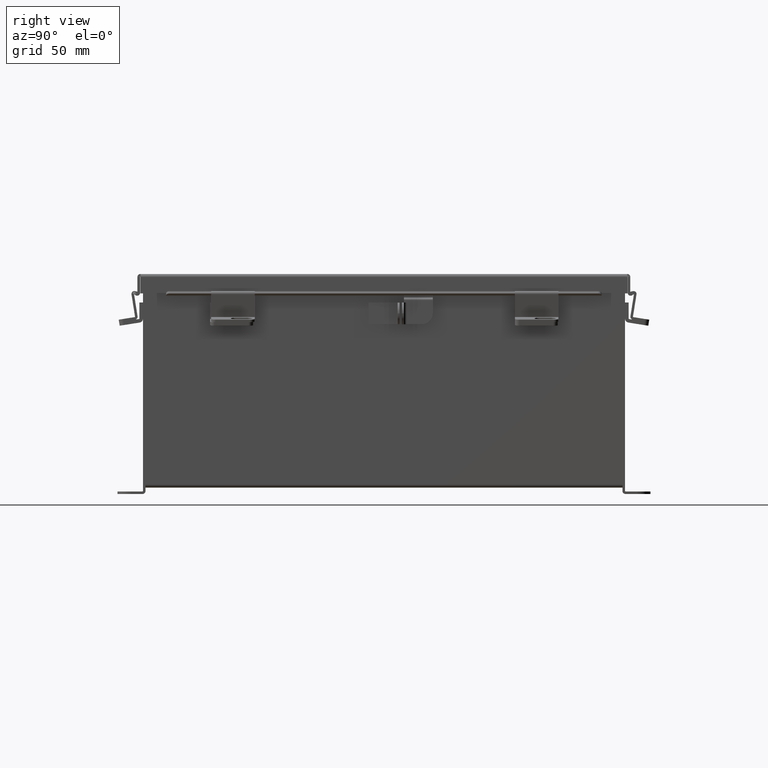
[diagram: clean part render]
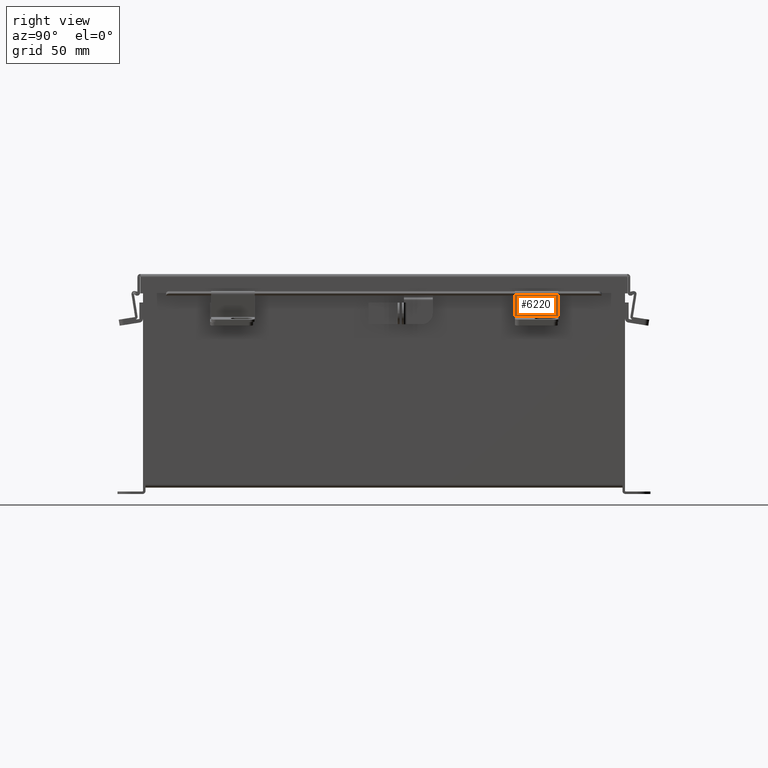
[diagram: same view with one face highlighted and labeled with its STEP entity id]
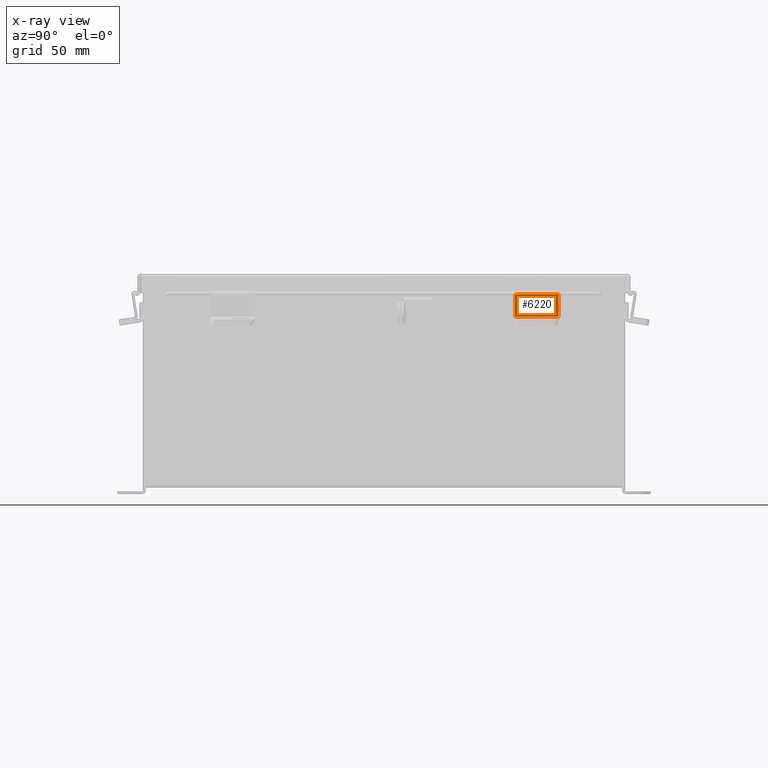
[diagram: x-ray of the same camera — body ghosted, the highlighted face saturated]
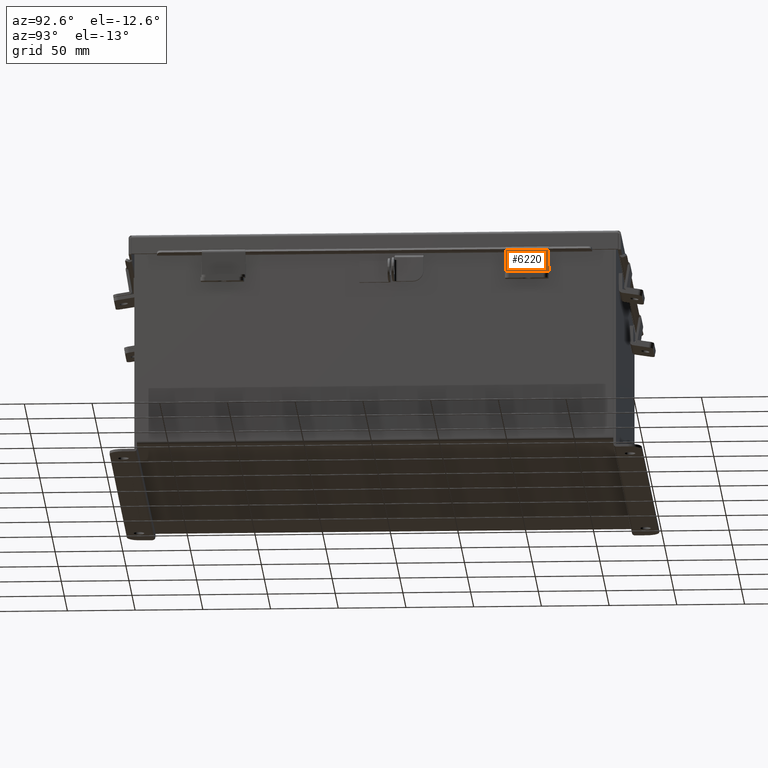
[diagram: same view with one face highlighted and labeled with its STEP entity id]
A machine part, right view. The second image highlights one B-rep face of the part: STEP entity #6220.
The next image is the same camera in x-ray: the body ghosted, the highlighted face saturated — about 0% of this face is hidden behind the body in this view.
A second angle (auxiliary view) of the same face is appended — the face is thin or edge-on in the first view.
In plain terms, the highlighted planar face has unit normal (-0.9877, 0, 0.1564).
Its self-contained STEP definition (entity closure, byte-faithful):
#786 = VECTOR ( 'NONE', #8544, 39.37007874015748100 ) ;
#996 = ORIENTED_EDGE ( 'NONE', *, *, #11734, .T. ) ;
#1102 = VECTOR ( 'NONE', #6031, 39.37007874015748100 ) ;
#1109 = EDGE_CURVE ( 'NONE', #18276, #4356, #1261, .T. ) ;
#1261 = LINE ( 'NONE', #16162, #786 ) ;
#1665 = CARTESIAN_POINT ( 'NONE',  ( 0.6325000000000000600, 0.3243453803252444000, -1.024442997624098700E-016 ) ) ;
#2497 = LINE ( 'NONE', #8894, #1102 ) ;
#3216 = DIRECTION ( 'NONE',  ( -1.000000000000000000, 0.0000000000000000000, -0.0000000000000000000 ) ) ;
#3393 = VERTEX_POINT ( 'NONE', #7151 ) ;
#4356 = VERTEX_POINT ( 'NONE', #5155 ) ;
#4674 = CARTESIAN_POINT ( 'NONE',  ( 0.6325000000000000600, -0.3344999999999998500, -3.734948428837859800E-017 ) ) ;
#5155 = CARTESIAN_POINT ( 'NONE',  ( -0.6325000000000000600, -0.3344999999999998500, -3.734948428837859800E-017 ) ) ;
#6031 = DIRECTION ( 'NONE',  ( -0.0000000000000000000, -1.000000000000000000, -0.0000000000000000000 ) ) ;
#6220 = ADVANCED_FACE ( 'NONE', ( #8912 ), #15969, .F. ) ;
#6589 = ORIENTED_EDGE ( 'NONE', *, *, #8395, .T. ) ;
#6868 = CARTESIAN_POINT ( 'NONE',  ( 0.6325000000000000600, -0.4174999999999998700, 0.0000000000000000000 ) ) ;
#6936 = DIRECTION ( 'NONE',  ( 0.0000000000000000000, 1.000000000000000000, 0.0000000000000000000 ) ) ;
#7151 = CARTESIAN_POINT ( 'NONE',  ( -0.6325000000000000600, 0.3243453803252444000, 0.0000000000000000000 ) ) ;
#8057 = AXIS2_PLACEMENT_3D ( 'NONE', #12996, #11059, #3216 ) ;
#8115 = EDGE_CURVE ( 'NONE', #18276, #17651, #13528, .T. ) ;
#8395 = EDGE_CURVE ( 'NONE', #3393, #4356, #2497, .T. ) ;
#8544 = DIRECTION ( 'NONE',  ( -1.000000000000000000, 0.0000000000000000000, 0.0000000000000000000 ) ) ;
#8894 = CARTESIAN_POINT ( 'NONE',  ( -0.6325000000000000600, -0.4174999999999998700, 0.0000000000000000000 ) ) ;
#8912 = FACE_OUTER_BOUND ( 'NONE', #12460, .T. ) ;
#11059 = DIRECTION ( 'NONE',  ( 0.0000000000000000000, 0.0000000000000000000, -1.000000000000000000 ) ) ;
#11734 = EDGE_CURVE ( 'NONE', #17651, #3393, #13656, .T. ) ;
#12265 = VECTOR ( 'NONE', #16302, 39.37007874015748100 ) ;
#12460 = EDGE_LOOP ( 'NONE', ( #996, #6589, #13561, #18997 ) ) ;
#12996 = CARTESIAN_POINT ( 'NONE',  ( 0.6325000000000000600, 0.4175000000000001500, 0.0000000000000000000 ) ) ;
#13064 = VECTOR ( 'NONE', #6936, 39.37007874015748100 ) ;
#13528 = LINE ( 'NONE', #6868, #13064 ) ;
#13561 = ORIENTED_EDGE ( 'NONE', *, *, #1109, .F. ) ;
#13656 = LINE ( 'NONE', #1665, #12265 ) ;
#15969 = PLANE ( 'NONE',  #8057 ) ;
#16162 = CARTESIAN_POINT ( 'NONE',  ( 0.6325000000000000600, -0.3344999999999998500, -3.734948428837859800E-017 ) ) ;
#16302 = DIRECTION ( 'NONE',  ( -1.000000000000000000, -0.0000000000000000000, -0.0000000000000000000 ) ) ;
#17651 = VERTEX_POINT ( 'NONE', #18857 ) ;
#18276 = VERTEX_POINT ( 'NONE', #4674 ) ;
#18857 = CARTESIAN_POINT ( 'NONE',  ( 0.6324999999999998400, 0.3243453803252444000, -1.024442997624098700E-016 ) ) ;
#18997 = ORIENTED_EDGE ( 'NONE', *, *, #8115, .T. ) ;